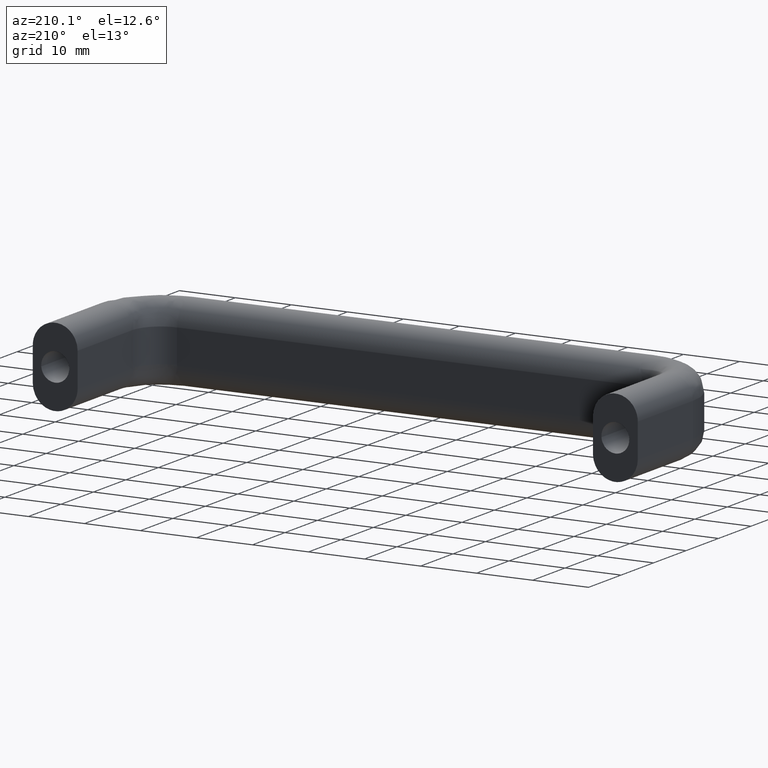
[diagram: clean part render]
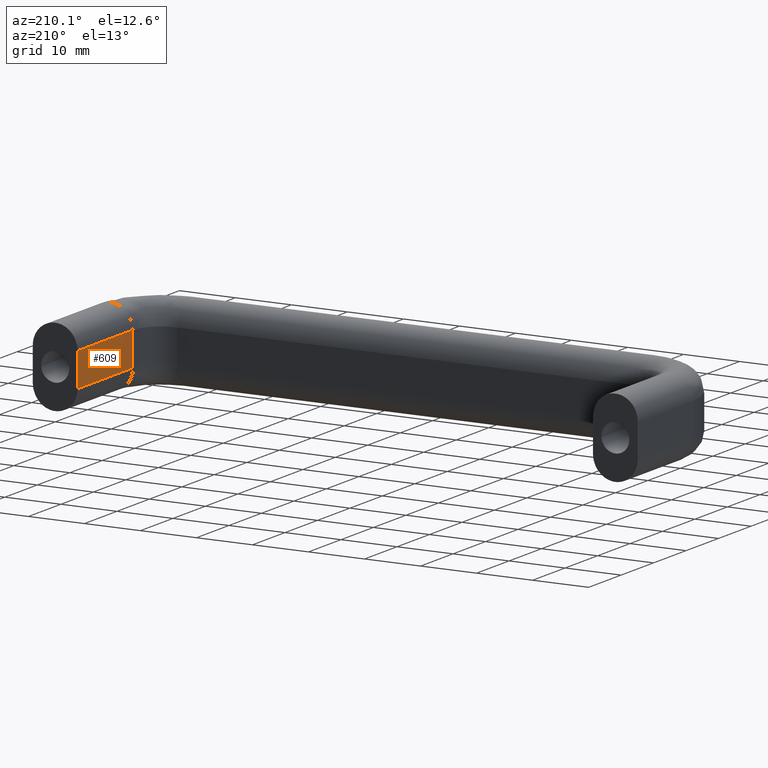
[diagram: same view with one face highlighted and labeled with its STEP entity id]
A machine part, auxiliary view. The second image highlights one B-rep face of the part: STEP entity #609.
In plain terms, the highlighted face is a freeform B-spline surface patch.
Its self-contained STEP definition (entity closure, byte-faithful):
#452=CARTESIAN_POINT('',(96.0,0.0,-3.0));
#453=VERTEX_POINT('',#452);
#476=CARTESIAN_POINT('',(96.0,-17.0,-3.0));
#477=VERTEX_POINT('',#476);
#493=CARTESIAN_POINT('',(96.0,-17.0,-3.0));
#494=CARTESIAN_POINT('',(96.0,0.0,-3.0));
#495=QUASI_UNIFORM_CURVE('',1,(#493,#494),.UNSPECIFIED.,.F.,.U.);
#496=EDGE_CURVE('',#477,#453,#495,.T.);
#548=CARTESIAN_POINT('',(96.0,0.0,3.0));
#549=VERTEX_POINT('',#548);
#565=CARTESIAN_POINT('',(96.0,-17.0,3.0));
#566=VERTEX_POINT('',#565);
#567=CARTESIAN_POINT('',(96.0,-17.0,3.0));
#568=CARTESIAN_POINT('',(96.0,0.0,3.0));
#569=QUASI_UNIFORM_CURVE('',1,(#567,#568),.UNSPECIFIED.,.F.,.U.);
#570=EDGE_CURVE('',#566,#549,#569,.T.);
#590=CARTESIAN_POINT('',(96.0,-17.849149967050710,-3.299699988370836));
#591=CARTESIAN_POINT('',(96.0,-17.849149967050710,3.299700149303376));
#592=CARTESIAN_POINT('',(96.0,0.849150423026235,-3.299699988370836));
#593=CARTESIAN_POINT('',(96.0,0.849150423026235,3.299700149303376));
#594=B_SPLINE_SURFACE_WITH_KNOTS('',1,1,((#590,#592),(#591,#593)),.UNSPECIFIED.,.F.,.F.,.U.,(2,2),(2,2),(0.0,6.599400137674213),(0.0,18.698300390076941),.UNSPECIFIED.);
#595=ORIENTED_EDGE('',*,*,#570,.T.);
#596=CARTESIAN_POINT('',(96.0,0.0,-3.0));
#597=CARTESIAN_POINT('',(96.0,0.0,3.0));
#598=QUASI_UNIFORM_CURVE('',1,(#596,#597),.UNSPECIFIED.,.F.,.U.);
#599=EDGE_CURVE('',#453,#549,#598,.T.);
#600=ORIENTED_EDGE('',*,*,#599,.F.);
#601=ORIENTED_EDGE('',*,*,#496,.F.);
#602=CARTESIAN_POINT('',(96.0,-17.0,-3.0));
#603=CARTESIAN_POINT('',(96.0,-17.0,3.0));
#604=QUASI_UNIFORM_CURVE('',1,(#602,#603),.UNSPECIFIED.,.F.,.U.);
#605=EDGE_CURVE('',#477,#566,#604,.T.);
#606=ORIENTED_EDGE('',*,*,#605,.T.);
#607=EDGE_LOOP('',(#595,#600,#601,#606));
#608=FACE_OUTER_BOUND('',#607,.T.);
#609=ADVANCED_FACE('',(#608),#594,.T.);